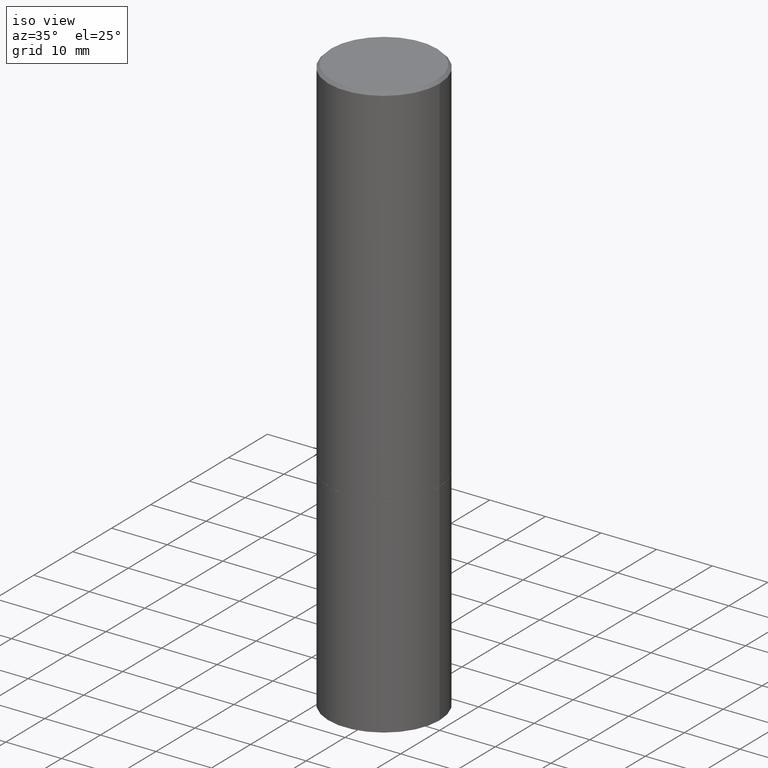
[diagram: clean part render]
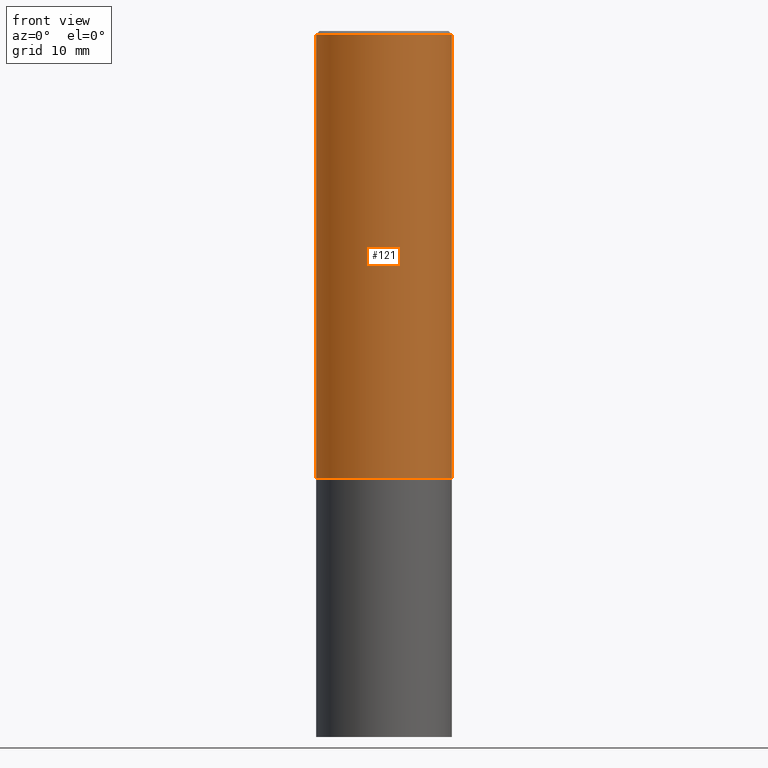
[diagram: tour spotlight — one face highlighted and labeled with its STEP entity id]
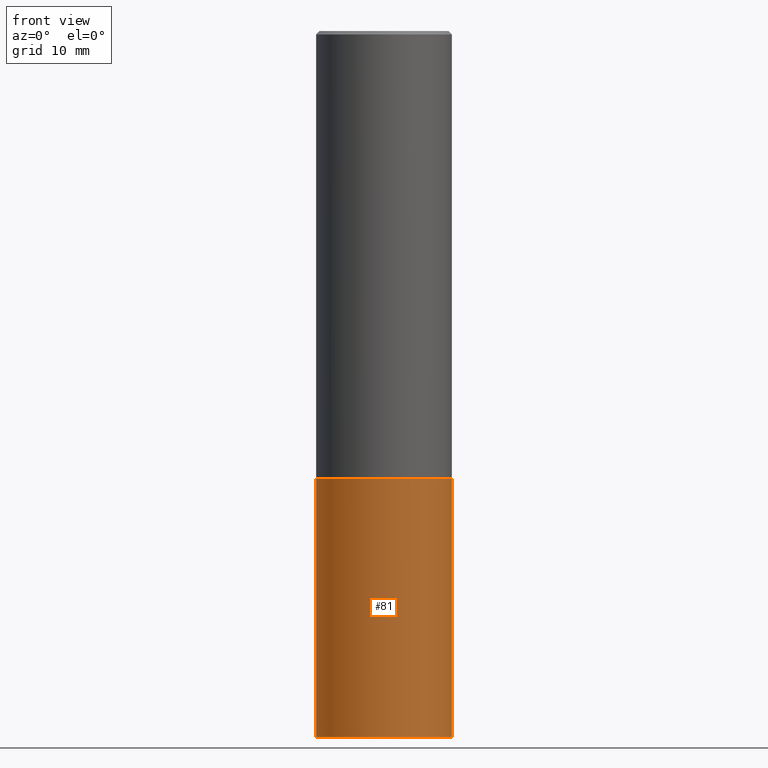
[diagram: tour spotlight — one face highlighted and labeled with its STEP entity id]
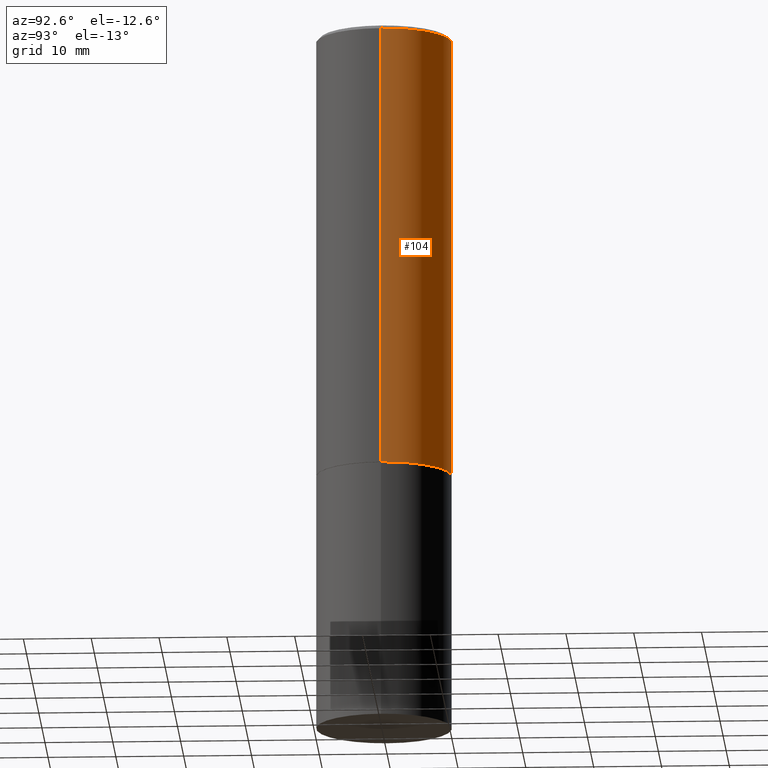
[diagram: tour spotlight — one face highlighted and labeled with its STEP entity id]
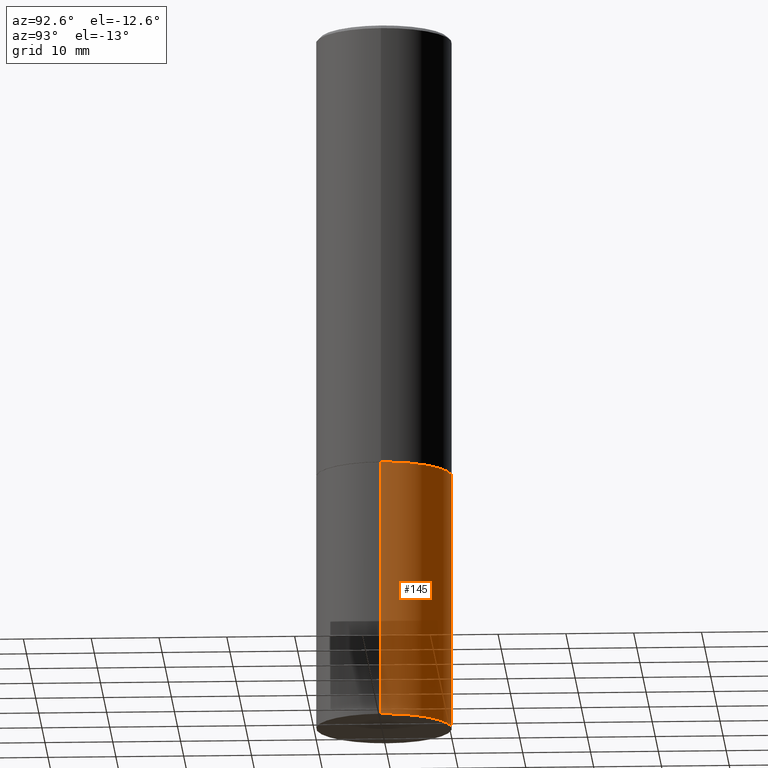
[diagram: tour spotlight — one face highlighted and labeled with its STEP entity id]
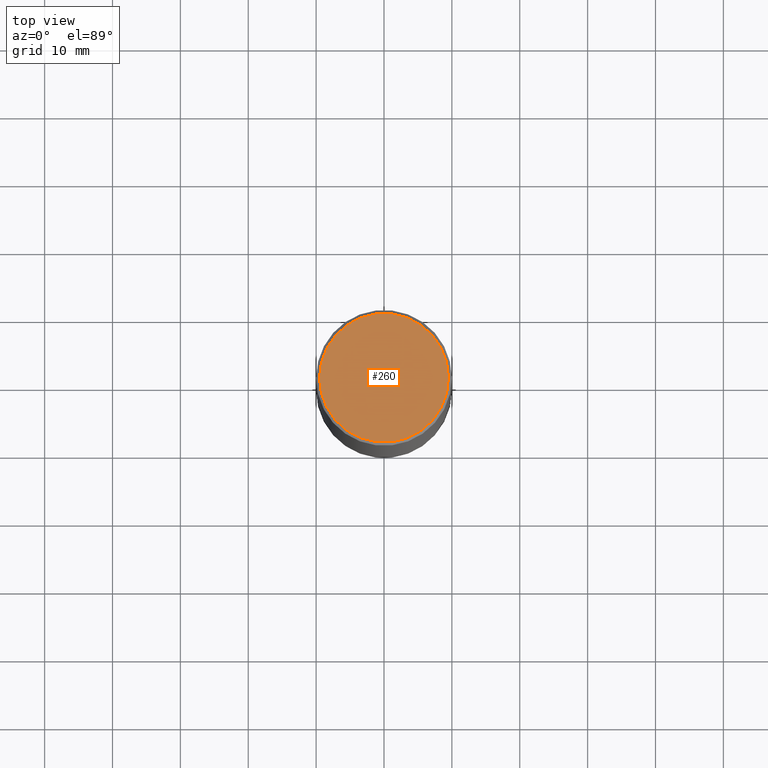
[diagram: tour spotlight — one face highlighted and labeled with its STEP entity id]
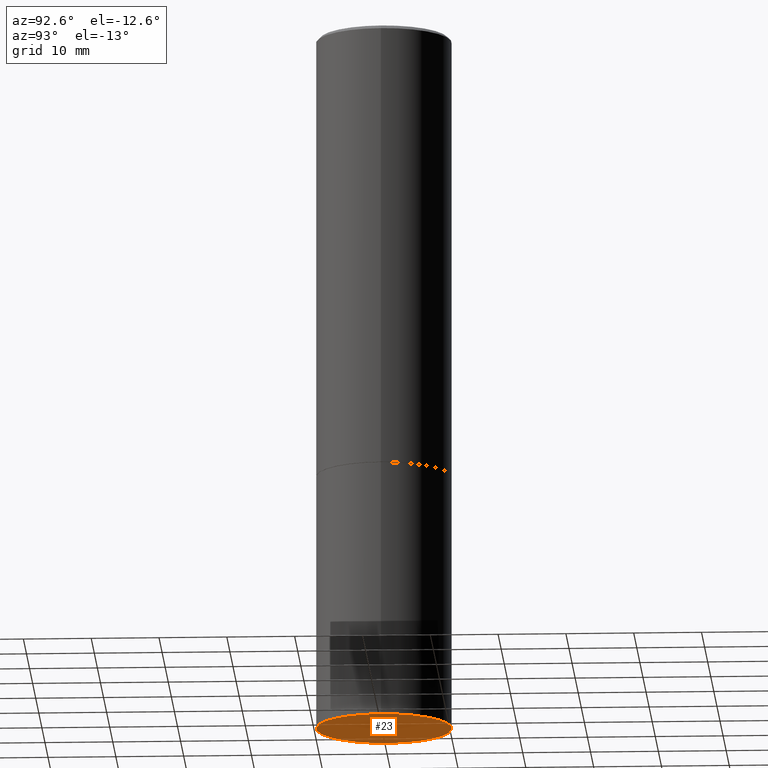
[diagram: tour spotlight — one face highlighted and labeled with its STEP entity id]
A machine part: a face-by-face anatomy tour. The part has 12 B-rep faces; the first image is the clean iso view, then the 6 largest visible faces are spotlighted one at a time (largest first), each with its STEP entity span.

Face 1 — front view, entity #121. In plain terms, the highlighted cylindrical surface (partial cylindrical patch) has radius 10 mm, axis along (-0, 0, 1).
Definition (entity closure, byte-faithful):
#17 = ORIENTED_EDGE ( 'NONE', *, *, #51, .F. ) ;
#35 = DIRECTION ( 'NONE',  ( -2.445468806185136877E-29, 3.491481338843145188E-15, 1.000000000000000000 ) ) ;
#39 = LINE ( 'NONE', #247, #265 ) ;
#43 = AXIS2_PLACEMENT_3D ( 'NONE', #290, #235, #136 ) ;
#51 = EDGE_CURVE ( 'NONE', #184, #98, #39, .T. ) ;
#54 = CARTESIAN_POINT ( 'NONE',  ( 4.890937612370296805E-31, -6.982962677686323656E-17, -0.02000000000000009409 ) ) ;
#57 = CYLINDRICAL_SURFACE ( 'NONE', #343, 0.3936999999999998279 ) ;
#80 = CARTESIAN_POINT ( 'NONE',  ( -0.3937000000000000499, -1.771894877456511079E-15, -2.597400000000001263 ) ) ;
#82 = FACE_OUTER_BOUND ( 'NONE', #173, .T. ) ;
#98 = VERTEX_POINT ( 'NONE', #156 ) ;
#112 = VERTEX_POINT ( 'NONE', #144 ) ;
#117 = EDGE_CURVE ( 'NONE', #98, #112, #170, .T. ) ;
#121 = ADVANCED_FACE ( 'NONE', ( #82 ), #57, .T. ) ;
#136 = DIRECTION ( 'NONE',  ( 1.000000000000000000, -6.982962677686267499E-15, 0.000000000000000000 ) ) ;
#140 = VECTOR ( 'NONE', #211, 39.37007874015748143 ) ;
#144 = CARTESIAN_POINT ( 'NONE',  ( 0.3936999999999996613, -2.770807688499512973E-15, -0.02000000000000009409 ) ) ;
#146 = EDGE_CURVE ( 'NONE', #184, #259, #189, .T. ) ;
#147 = DIRECTION ( 'NONE',  ( 1.000000000000000000, -6.982962677686266711E-15, 4.876176775795935793E-29 ) ) ;
#149 = ORIENTED_EDGE ( 'NONE', *, *, #146, .T. ) ;
#156 = CARTESIAN_POINT ( 'NONE',  ( -0.3936999999999996613, 2.679362779428217552E-15, -0.02000000000000009409 ) ) ;
#170 = CIRCLE ( 'NONE', #266, 0.3936999999999996613 ) ;
#173 = EDGE_LOOP ( 'NONE', ( #17, #149, #234, #341 ) ) ;
#179 = CARTESIAN_POINT ( 'NONE',  ( 0.3937000000000000499, -1.181796603571627441E-14, -2.597400000000001263 ) ) ;
#184 = VERTEX_POINT ( 'NONE', #80 ) ;
#189 = CIRCLE ( 'NONE', #43, 0.3937000000000000499 ) ;
#211 = DIRECTION ( 'NONE',  ( -2.445468806185136877E-29, 3.491481338843145188E-15, 1.000000000000000000 ) ) ;
#219 = DIRECTION ( 'NONE',  ( 1.000000000000000000, -6.982962677686266711E-15, 0.000000000000000000 ) ) ;
#234 = ORIENTED_EDGE ( 'NONE', *, *, #278, .T. ) ;
#235 = DIRECTION ( 'NONE',  ( -2.445468806185136597E-29, 3.491481338843145583E-15, 1.000000000000000000 ) ) ;
#247 = CARTESIAN_POINT ( 'NONE',  ( -0.3936999999999998279, 2.797406750687513209E-15, -1.936584745033355614E-29 ) ) ;
#259 = VERTEX_POINT ( 'NONE', #179 ) ;
#265 = VECTOR ( 'NONE', #35, 39.37007874015748143 ) ;
#266 = AXIS2_PLACEMENT_3D ( 'NONE', #54, #331, #219 ) ;
#272 = DIRECTION ( 'NONE',  ( -2.445468806185136597E-29, 3.491481338843145583E-15, 1.000000000000000000 ) ) ;
#278 = EDGE_CURVE ( 'NONE', #259, #112, #324, .T. ) ;
#290 = CARTESIAN_POINT ( 'NONE',  ( 6.351860677185276395E-29, -9.068773629511191193E-15, -2.597400000000001263 ) ) ;
#293 = CARTESIAN_POINT ( 'NONE',  ( 0.3936999999999998279, -2.749192406205082033E-15, 1.919750796630859051E-29 ) ) ;
#324 = LINE ( 'NONE', #293, #140 ) ;
#331 = DIRECTION ( 'NONE',  ( -2.445468806185136597E-29, 3.491481338843145583E-15, 1.000000000000000000 ) ) ;
#333 = CARTESIAN_POINT ( 'NONE',  ( 0.000000000000000000, 0.000000000000000000, 0.000000000000000000 ) ) ;
#341 = ORIENTED_EDGE ( 'NONE', *, *, #117, .F. ) ;
#343 = AXIS2_PLACEMENT_3D ( 'NONE', #333, #272, #147 ) ;

Face 2 — front view, entity #81. In plain terms, the highlighted cylindrical surface (partial cylindrical patch) has radius 10 mm, axis along (-0, 0, 1).
Definition (entity closure, byte-faithful):
#3 = DIRECTION ( 'NONE',  ( -2.445468806185136877E-29, 3.491481338843145188E-15, 1.000000000000000000 ) ) ;
#21 = CARTESIAN_POINT ( 'NONE',  ( 0.3937000000000000499, -1.704506274809834471E-14, -4.094500000000000028 ) ) ;
#31 = ORIENTED_EDGE ( 'NONE', *, *, #252, .F. ) ;
#33 = DIRECTION ( 'NONE',  ( -2.445468806185136597E-29, 3.491481338843145583E-15, 1.000000000000000000 ) ) ;
#44 = DIRECTION ( 'NONE',  ( -2.445468806185136597E-29, 3.491481338843145583E-15, 1.000000000000000000 ) ) ;
#47 = CARTESIAN_POINT ( 'NONE',  ( 0.3937000000000000499, -1.182145751705511584E-14, -2.598400000000000265 ) ) ;
#61 = AXIS2_PLACEMENT_3D ( 'NONE', #327, #33, #183 ) ;
#65 = VERTEX_POINT ( 'NONE', #185 ) ;
#67 = CARTESIAN_POINT ( 'NONE',  ( -0.3937000000000000499, 2.797406750687514786E-15, -1.936584745033356735E-29 ) ) ;
#81 = ADVANCED_FACE ( 'NONE', ( #134 ), #353, .T. ) ;
#83 = CARTESIAN_POINT ( 'NONE',  ( 1.001297202692504215E-28, -1.429587034189326149E-14, -4.094500000000000028 ) ) ;
#88 = VERTEX_POINT ( 'NONE', #213 ) ;
#100 = DIRECTION ( 'NONE',  ( 1.000000000000000000, -6.982962677686265922E-15, 4.876176775795935793E-29 ) ) ;
#107 = CARTESIAN_POINT ( 'NONE',  ( 0.000000000000000000, 0.000000000000000000, 0.000000000000000000 ) ) ;
#124 = ORIENTED_EDGE ( 'NONE', *, *, #328, .T. ) ;
#134 = FACE_OUTER_BOUND ( 'NONE', #340, .T. ) ;
#150 = VERTEX_POINT ( 'NONE', #21 ) ;
#158 = CIRCLE ( 'NONE', #61, 0.3937000000000000499 ) ;
#159 = CARTESIAN_POINT ( 'NONE',  ( 0.3937000000000000499, -2.749192406205083217E-15, 1.919750796630860172E-29 ) ) ;
#160 = LINE ( 'NONE', #159, #283 ) ;
#163 = DIRECTION ( 'NONE',  ( -2.445468806185136877E-29, 3.491481338843145188E-15, 1.000000000000000000 ) ) ;
#167 = VECTOR ( 'NONE', #3, 39.37007874015748143 ) ;
#180 = EDGE_CURVE ( 'NONE', #88, #150, #294, .T. ) ;
#183 = DIRECTION ( 'NONE',  ( 1.000000000000000000, -6.982962677686267499E-15, 0.000000000000000000 ) ) ;
#185 = CARTESIAN_POINT ( 'NONE',  ( -0.3937000000000000499, -8.886660975684131482E-15, -2.598400000000000265 ) ) ;
#188 = ORIENTED_EDGE ( 'NONE', *, *, #180, .T. ) ;
#196 = DIRECTION ( 'NONE',  ( 1.000000000000000000, -6.982962677686267499E-15, 0.000000000000000000 ) ) ;
#205 = EDGE_CURVE ( 'NONE', #65, #319, #158, .T. ) ;
#209 = AXIS2_PLACEMENT_3D ( 'NONE', #83, #355, #196 ) ;
#213 = CARTESIAN_POINT ( 'NONE',  ( -0.3937000000000000499, -8.886660975684131482E-15, -4.094500000000000028 ) ) ;
#229 = ORIENTED_EDGE ( 'NONE', *, *, #205, .F. ) ;
#252 = EDGE_CURVE ( 'NONE', #88, #65, #287, .T. ) ;
#275 = AXIS2_PLACEMENT_3D ( 'NONE', #107, #44, #100 ) ;
#283 = VECTOR ( 'NONE', #163, 39.37007874015748143 ) ;
#287 = LINE ( 'NONE', #67, #167 ) ;
#294 = CIRCLE ( 'NONE', #209, 0.3937000000000000499 ) ;
#319 = VERTEX_POINT ( 'NONE', #47 ) ;
#327 = CARTESIAN_POINT ( 'NONE',  ( 6.354306145991459756E-29, -9.072265110850031044E-15, -2.598400000000000265 ) ) ;
#328 = EDGE_CURVE ( 'NONE', #150, #319, #160, .T. ) ;
#340 = EDGE_LOOP ( 'NONE', ( #31, #188, #124, #229 ) ) ;
#353 = CYLINDRICAL_SURFACE ( 'NONE', #275, 0.3937000000000000499 ) ;
#355 = DIRECTION ( 'NONE',  ( -2.445468806185136597E-29, 3.491481338843145583E-15, 1.000000000000000000 ) ) ;

Face 3 — auxiliary view, entity #104. In plain terms, the highlighted cylindrical surface (partial cylindrical patch) has radius 10 mm, axis along (-0, 0, 1).
Definition (entity closure, byte-faithful):
#12 = CYLINDRICAL_SURFACE ( 'NONE', #206, 0.3936999999999998279 ) ;
#35 = DIRECTION ( 'NONE',  ( -2.445468806185136877E-29, 3.491481338843145188E-15, 1.000000000000000000 ) ) ;
#39 = LINE ( 'NONE', #247, #265 ) ;
#51 = EDGE_CURVE ( 'NONE', #184, #98, #39, .T. ) ;
#80 = CARTESIAN_POINT ( 'NONE',  ( -0.3937000000000000499, -1.771894877456511079E-15, -2.597400000000001263 ) ) ;
#84 = CIRCLE ( 'NONE', #122, 0.3936999999999996613 ) ;
#86 = ORIENTED_EDGE ( 'NONE', *, *, #278, .F. ) ;
#98 = VERTEX_POINT ( 'NONE', #156 ) ;
#104 = ADVANCED_FACE ( 'NONE', ( #255 ), #12, .T. ) ;
#112 = VERTEX_POINT ( 'NONE', #144 ) ;
#115 = DIRECTION ( 'NONE',  ( -2.445468806185136597E-29, 3.491481338843145583E-15, 1.000000000000000000 ) ) ;
#119 = ORIENTED_EDGE ( 'NONE', *, *, #51, .T. ) ;
#122 = AXIS2_PLACEMENT_3D ( 'NONE', #325, #303, #264 ) ;
#129 = AXIS2_PLACEMENT_3D ( 'NONE', #363, #115, #220 ) ;
#131 = EDGE_CURVE ( 'NONE', #259, #184, #215, .T. ) ;
#140 = VECTOR ( 'NONE', #211, 39.37007874015748143 ) ;
#144 = CARTESIAN_POINT ( 'NONE',  ( 0.3936999999999996613, -2.770807688499512973E-15, -0.02000000000000009409 ) ) ;
#156 = CARTESIAN_POINT ( 'NONE',  ( -0.3936999999999996613, 2.679362779428217552E-15, -0.02000000000000009409 ) ) ;
#175 = ORIENTED_EDGE ( 'NONE', *, *, #131, .T. ) ;
#179 = CARTESIAN_POINT ( 'NONE',  ( 0.3937000000000000499, -1.181796603571627441E-14, -2.597400000000001263 ) ) ;
#184 = VERTEX_POINT ( 'NONE', #80 ) ;
#194 = EDGE_CURVE ( 'NONE', #112, #98, #84, .T. ) ;
#206 = AXIS2_PLACEMENT_3D ( 'NONE', #232, #299, #244 ) ;
#211 = DIRECTION ( 'NONE',  ( -2.445468806185136877E-29, 3.491481338843145188E-15, 1.000000000000000000 ) ) ;
#215 = CIRCLE ( 'NONE', #129, 0.3937000000000000499 ) ;
#220 = DIRECTION ( 'NONE',  ( 1.000000000000000000, -6.982962677686267499E-15, 0.000000000000000000 ) ) ;
#232 = CARTESIAN_POINT ( 'NONE',  ( 0.000000000000000000, 0.000000000000000000, 0.000000000000000000 ) ) ;
#244 = DIRECTION ( 'NONE',  ( 1.000000000000000000, -6.982962677686266711E-15, 4.876176775795935793E-29 ) ) ;
#247 = CARTESIAN_POINT ( 'NONE',  ( -0.3936999999999998279, 2.797406750687513209E-15, -1.936584745033355614E-29 ) ) ;
#255 = FACE_OUTER_BOUND ( 'NONE', #284, .T. ) ;
#259 = VERTEX_POINT ( 'NONE', #179 ) ;
#264 = DIRECTION ( 'NONE',  ( 1.000000000000000000, -6.982962677686266711E-15, 0.000000000000000000 ) ) ;
#265 = VECTOR ( 'NONE', #35, 39.37007874015748143 ) ;
#276 = ORIENTED_EDGE ( 'NONE', *, *, #194, .F. ) ;
#278 = EDGE_CURVE ( 'NONE', #259, #112, #324, .T. ) ;
#284 = EDGE_LOOP ( 'NONE', ( #175, #119, #276, #86 ) ) ;
#293 = CARTESIAN_POINT ( 'NONE',  ( 0.3936999999999998279, -2.749192406205082033E-15, 1.919750796630859051E-29 ) ) ;
#299 = DIRECTION ( 'NONE',  ( -2.445468806185136597E-29, 3.491481338843145583E-15, 1.000000000000000000 ) ) ;
#303 = DIRECTION ( 'NONE',  ( -2.445468806185136597E-29, 3.491481338843145583E-15, 1.000000000000000000 ) ) ;
#324 = LINE ( 'NONE', #293, #140 ) ;
#325 = CARTESIAN_POINT ( 'NONE',  ( 4.890937612370296805E-31, -6.982962677686323656E-17, -0.02000000000000009409 ) ) ;
#363 = CARTESIAN_POINT ( 'NONE',  ( 6.351860677185276395E-29, -9.068773629511191193E-15, -2.597400000000001263 ) ) ;

Face 4 — auxiliary view, entity #145. In plain terms, the highlighted cylindrical surface (partial cylindrical patch) has radius 10 mm, axis along (-0, 0, 1).
Definition (entity closure, byte-faithful):
#3 = DIRECTION ( 'NONE',  ( -2.445468806185136877E-29, 3.491481338843145188E-15, 1.000000000000000000 ) ) ;
#5 = DIRECTION ( 'NONE',  ( -2.445468806185136597E-29, 3.491481338843145583E-15, 1.000000000000000000 ) ) ;
#8 = ORIENTED_EDGE ( 'NONE', *, *, #252, .T. ) ;
#14 = AXIS2_PLACEMENT_3D ( 'NONE', #198, #5, #63 ) ;
#18 = AXIS2_PLACEMENT_3D ( 'NONE', #233, #135, #216 ) ;
#21 = CARTESIAN_POINT ( 'NONE',  ( 0.3937000000000000499, -1.704506274809834471E-14, -4.094500000000000028 ) ) ;
#22 = CYLINDRICAL_SURFACE ( 'NONE', #14, 0.3937000000000000499 ) ;
#27 = DIRECTION ( 'NONE',  ( 1.000000000000000000, -6.982962677686267499E-15, 0.000000000000000000 ) ) ;
#47 = CARTESIAN_POINT ( 'NONE',  ( 0.3937000000000000499, -1.182145751705511584E-14, -2.598400000000000265 ) ) ;
#63 = DIRECTION ( 'NONE',  ( 1.000000000000000000, -6.982962677686265922E-15, 4.876176775795935793E-29 ) ) ;
#65 = VERTEX_POINT ( 'NONE', #185 ) ;
#67 = CARTESIAN_POINT ( 'NONE',  ( -0.3937000000000000499, 2.797406750687514786E-15, -1.936584745033356735E-29 ) ) ;
#88 = VERTEX_POINT ( 'NONE', #213 ) ;
#106 = EDGE_LOOP ( 'NONE', ( #238, #8, #279, #288 ) ) ;
#135 = DIRECTION ( 'NONE',  ( -2.445468806185136597E-29, 3.491481338843145583E-15, 1.000000000000000000 ) ) ;
#145 = ADVANCED_FACE ( 'NONE', ( #335 ), #22, .T. ) ;
#150 = VERTEX_POINT ( 'NONE', #21 ) ;
#159 = CARTESIAN_POINT ( 'NONE',  ( 0.3937000000000000499, -2.749192406205083217E-15, 1.919750796630860172E-29 ) ) ;
#160 = LINE ( 'NONE', #159, #283 ) ;
#163 = DIRECTION ( 'NONE',  ( -2.445468806185136877E-29, 3.491481338843145188E-15, 1.000000000000000000 ) ) ;
#165 = EDGE_CURVE ( 'NONE', #150, #88, #246, .T. ) ;
#167 = VECTOR ( 'NONE', #3, 39.37007874015748143 ) ;
#185 = CARTESIAN_POINT ( 'NONE',  ( -0.3937000000000000499, -8.886660975684131482E-15, -2.598400000000000265 ) ) ;
#186 = CIRCLE ( 'NONE', #18, 0.3937000000000000499 ) ;
#198 = CARTESIAN_POINT ( 'NONE',  ( 0.000000000000000000, 0.000000000000000000, 0.000000000000000000 ) ) ;
#213 = CARTESIAN_POINT ( 'NONE',  ( -0.3937000000000000499, -8.886660975684131482E-15, -4.094500000000000028 ) ) ;
#216 = DIRECTION ( 'NONE',  ( 1.000000000000000000, -6.982962677686267499E-15, 0.000000000000000000 ) ) ;
#233 = CARTESIAN_POINT ( 'NONE',  ( 6.354306145991459756E-29, -9.072265110850031044E-15, -2.598400000000000265 ) ) ;
#238 = ORIENTED_EDGE ( 'NONE', *, *, #165, .T. ) ;
#246 = CIRCLE ( 'NONE', #256, 0.3937000000000000499 ) ;
#252 = EDGE_CURVE ( 'NONE', #88, #65, #287, .T. ) ;
#256 = AXIS2_PLACEMENT_3D ( 'NONE', #297, #269, #27 ) ;
#269 = DIRECTION ( 'NONE',  ( -2.445468806185136597E-29, 3.491481338843145583E-15, 1.000000000000000000 ) ) ;
#279 = ORIENTED_EDGE ( 'NONE', *, *, #318, .F. ) ;
#283 = VECTOR ( 'NONE', #163, 39.37007874015748143 ) ;
#287 = LINE ( 'NONE', #67, #167 ) ;
#288 = ORIENTED_EDGE ( 'NONE', *, *, #328, .F. ) ;
#297 = CARTESIAN_POINT ( 'NONE',  ( 1.001297202692504215E-28, -1.429587034189326149E-14, -4.094500000000000028 ) ) ;
#318 = EDGE_CURVE ( 'NONE', #319, #65, #186, .T. ) ;
#319 = VERTEX_POINT ( 'NONE', #47 ) ;
#328 = EDGE_CURVE ( 'NONE', #150, #319, #160, .T. ) ;
#335 = FACE_OUTER_BOUND ( 'NONE', #106, .T. ) ;

Face 5 — top view, entity #260. In plain terms, the highlighted planar face has unit normal (0, -0, -1).
Definition (entity closure, byte-faithful):
#20 = DIRECTION ( 'NONE',  ( 2.438088387897960049E-29, -3.491481338843145188E-15, -1.000000000000000000 ) ) ;
#34 = ORIENTED_EDGE ( 'NONE', *, *, #356, .T. ) ;
#37 = AXIS2_PLACEMENT_3D ( 'NONE', #108, #20, #321 ) ;
#41 = FACE_OUTER_BOUND ( 'NONE', #227, .T. ) ;
#72 = EDGE_CURVE ( 'NONE', #362, #268, #208, .T. ) ;
#73 = DIRECTION ( 'NONE',  ( 1.000000000000000000, -6.982962677686266711E-15, 4.876212485538980163E-29 ) ) ;
#103 = DIRECTION ( 'NONE',  ( -2.445468806185136597E-29, 3.491481338843145583E-15, 1.000000000000000000 ) ) ;
#108 = CARTESIAN_POINT ( 'NONE',  ( 2.609533152651354648E-15, 0.3736999999999996436, -1.302632320080632041E-15 ) ) ;
#114 = AXIS2_PLACEMENT_3D ( 'NONE', #352, #214, #137 ) ;
#137 = DIRECTION ( 'NONE',  ( 1.000000000000000000, -6.982962677686266711E-15, 4.876212485538980163E-29 ) ) ;
#190 = PLANE ( 'NONE',  #37 ) ;
#208 = CIRCLE ( 'NONE', #300, 0.3736999999999996436 ) ;
#214 = DIRECTION ( 'NONE',  ( -2.445468806185136597E-29, 3.491481338843145583E-15, 1.000000000000000000 ) ) ;
#227 = EDGE_LOOP ( 'NONE', ( #298, #34 ) ) ;
#239 = CARTESIAN_POINT ( 'NONE',  ( -0.3736999999999996436, 2.644447966039786297E-15, 4.268512490082039448E-18 ) ) ;
#260 = ADVANCED_FACE ( 'NONE', ( #41 ), #190, .F. ) ;
#262 = CARTESIAN_POINT ( 'NONE',  ( 0.3736999999999996436, -2.667287895133365992E-15, 4.268512490118863228E-18 ) ) ;
#268 = VERTEX_POINT ( 'NONE', #262 ) ;
#298 = ORIENTED_EDGE ( 'NONE', *, *, #72, .T. ) ;
#300 = AXIS2_PLACEMENT_3D ( 'NONE', #351, #103, #73 ) ;
#321 = DIRECTION ( 'NONE',  ( -1.000000000000000000, 6.982962677686265922E-15, -4.876176775795935793E-29 ) ) ;
#349 = CIRCLE ( 'NONE', #114, 0.3736999999999996436 ) ;
#351 = CARTESIAN_POINT ( 'NONE',  ( -1.043851414335219820E-46, 1.490343170380447200E-32, 4.268512490100411279E-18 ) ) ;
#352 = CARTESIAN_POINT ( 'NONE',  ( -1.043851414335219820E-46, 1.490343170380447200E-32, 4.268512490100411279E-18 ) ) ;
#356 = EDGE_CURVE ( 'NONE', #268, #362, #349, .T. ) ;
#362 = VERTEX_POINT ( 'NONE', #239 ) ;

Face 6 — auxiliary view, entity #23. In plain terms, the highlighted planar face has unit normal (0, -0, -1).
Definition (entity closure, byte-faithful):
#21 = CARTESIAN_POINT ( 'NONE',  ( 0.3937000000000000499, -1.704506274809834471E-14, -4.094500000000000028 ) ) ;
#23 = ADVANCED_FACE ( 'NONE', ( #339 ), #310, .T. ) ;
#27 = DIRECTION ( 'NONE',  ( 1.000000000000000000, -6.982962677686267499E-15, 0.000000000000000000 ) ) ;
#83 = CARTESIAN_POINT ( 'NONE',  ( 1.001297202692504215E-28, -1.429587034189326149E-14, -4.094500000000000028 ) ) ;
#88 = VERTEX_POINT ( 'NONE', #213 ) ;
#150 = VERTEX_POINT ( 'NONE', #21 ) ;
#165 = EDGE_CURVE ( 'NONE', #150, #88, #246, .T. ) ;
#180 = EDGE_CURVE ( 'NONE', #88, #150, #294, .T. ) ;
#182 = DIRECTION ( 'NONE',  ( -1.000000000000000000, 6.982962677686265922E-15, -4.876176775795935793E-29 ) ) ;
#192 = ORIENTED_EDGE ( 'NONE', *, *, #165, .F. ) ;
#196 = DIRECTION ( 'NONE',  ( 1.000000000000000000, -6.982962677686267499E-15, 0.000000000000000000 ) ) ;
#202 = CARTESIAN_POINT ( 'NONE',  ( 2.749192406205183007E-15, 0.3936999999999857280, -4.094500000000001805 ) ) ;
#203 = EDGE_LOOP ( 'NONE', ( #192, #323 ) ) ;
#209 = AXIS2_PLACEMENT_3D ( 'NONE', #83, #355, #196 ) ;
#213 = CARTESIAN_POINT ( 'NONE',  ( -0.3937000000000000499, -8.886660975684131482E-15, -4.094500000000000028 ) ) ;
#231 = AXIS2_PLACEMENT_3D ( 'NONE', #202, #311, #182 ) ;
#246 = CIRCLE ( 'NONE', #256, 0.3937000000000000499 ) ;
#256 = AXIS2_PLACEMENT_3D ( 'NONE', #297, #269, #27 ) ;
#269 = DIRECTION ( 'NONE',  ( -2.445468806185136597E-29, 3.491481338843145583E-15, 1.000000000000000000 ) ) ;
#294 = CIRCLE ( 'NONE', #209, 0.3937000000000000499 ) ;
#297 = CARTESIAN_POINT ( 'NONE',  ( 1.001297202692504215E-28, -1.429587034189326149E-14, -4.094500000000000028 ) ) ;
#310 = PLANE ( 'NONE',  #231 ) ;
#311 = DIRECTION ( 'NONE',  ( 2.438088387897960049E-29, -3.491481338843145188E-15, -1.000000000000000000 ) ) ;
#323 = ORIENTED_EDGE ( 'NONE', *, *, #180, .F. ) ;
#339 = FACE_OUTER_BOUND ( 'NONE', #203, .T. ) ;
#355 = DIRECTION ( 'NONE',  ( -2.445468806185136597E-29, 3.491481338843145583E-15, 1.000000000000000000 ) ) ;